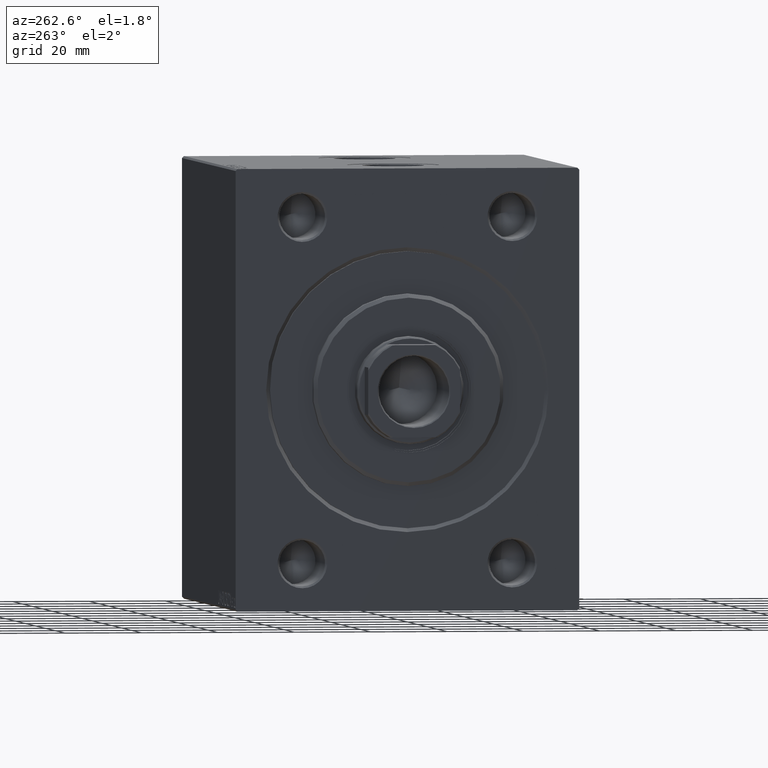
[diagram: clean part render]
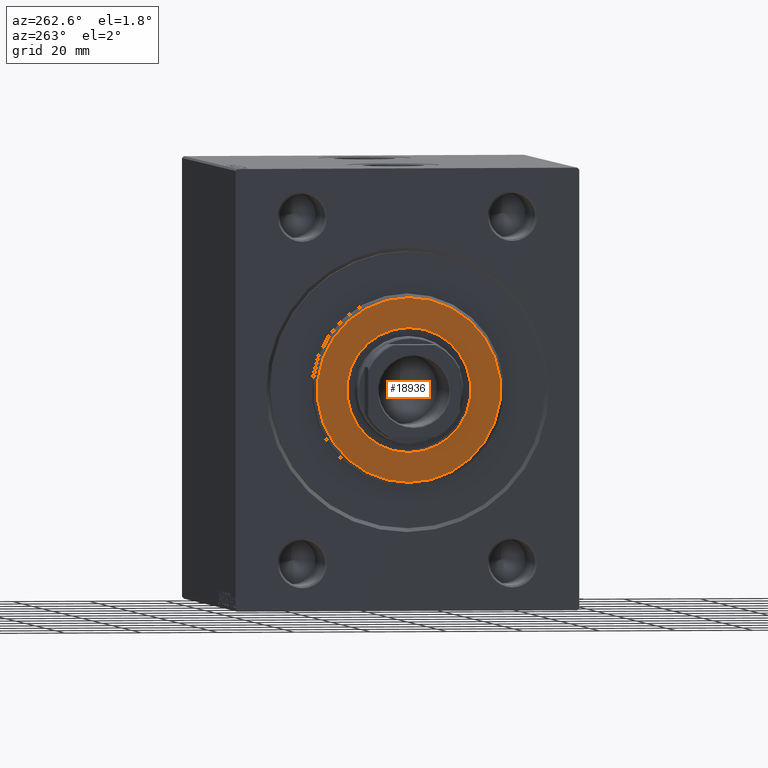
[diagram: same view with one face highlighted and labeled with its STEP entity id]
A machine part, auxiliary view. The second image highlights one B-rep face of the part: STEP entity #18936.
In plain terms, the highlighted planar face has unit normal (-1, 0, 0).
Its self-contained STEP definition (entity closure, byte-faithful):
#863 = EDGE_CURVE ( 'NONE', #29674, #34661, #41952, .T. ) ;
#2460 = AXIS2_PLACEMENT_3D ( 'NONE', #9601, #17258, #23089 ) ;
#3936 = CARTESIAN_POINT ( 'NONE',  ( 3.000000000000000000, 0.000000000000000000, 0.000000000000000000 ) ) ;
#4336 = DIRECTION ( 'NONE',  ( 0.000000000000000000, 0.000000000000000000, -1.000000000000000000 ) ) ;
#6357 = ORIENTED_EDGE ( 'NONE', *, *, #35378, .F. ) ;
#7293 = DIRECTION ( 'NONE',  ( 1.000000000000000000, -0.000000000000000000, 0.000000000000000000 ) ) ;
#7618 = DIRECTION ( 'NONE',  ( 0.000000000000000000, 0.000000000000000000, -1.000000000000000000 ) ) ;
#8767 = EDGE_CURVE ( 'NONE', #34661, #29674, #31979, .T. ) ;
#9027 = CARTESIAN_POINT ( 'NONE',  ( 3.000000000000000000, 1.990051048614449313E-15, 16.25000000000000000 ) ) ;
#9154 = AXIS2_PLACEMENT_3D ( 'NONE', #25882, #20500, #16908 ) ;
#9269 = AXIS2_PLACEMENT_3D ( 'NONE', #3936, #24393, #37897 ) ;
#9601 = CARTESIAN_POINT ( 'NONE',  ( 3.000000000000000000, 0.000000000000000000, 0.000000000000000000 ) ) ;
#10013 = EDGE_CURVE ( 'NONE', #20336, #11153, #19077, .T. ) ;
#11153 = VERTEX_POINT ( 'NONE', #26225 ) ;
#11207 = AXIS2_PLACEMENT_3D ( 'NONE', #17742, #31658, #7618 ) ;
#16908 = DIRECTION ( 'NONE',  ( 0.000000000000000000, 0.000000000000000000, -1.000000000000000000 ) ) ;
#16999 = PLANE ( 'NONE',  #9269 ) ;
#17258 = DIRECTION ( 'NONE',  ( 1.000000000000000000, -0.000000000000000000, 0.000000000000000000 ) ) ;
#17742 = CARTESIAN_POINT ( 'NONE',  ( 3.000000000000000000, 0.000000000000000000, 0.000000000000000000 ) ) ;
#18936 = ADVANCED_FACE ( 'NONE', ( #34305, #40811 ), #16999, .T. ) ;
#19077 = CIRCLE ( 'NONE', #11207, 16.25000000000000000 ) ;
#20336 = VERTEX_POINT ( 'NONE', #9027 ) ;
#20500 = DIRECTION ( 'NONE',  ( 1.000000000000000000, 0.000000000000000000, 0.000000000000000000 ) ) ;
#22750 = CIRCLE ( 'NONE', #9154, 16.25000000000000000 ) ;
#23089 = DIRECTION ( 'NONE',  ( 0.000000000000000000, 0.000000000000000000, -1.000000000000000000 ) ) ;
#24393 = DIRECTION ( 'NONE',  ( 1.000000000000000000, -0.000000000000000000, 0.000000000000000000 ) ) ;
#24418 = EDGE_LOOP ( 'NONE', ( #6357, #34190 ) ) ;
#25882 = CARTESIAN_POINT ( 'NONE',  ( 3.000000000000000000, 0.000000000000000000, 0.000000000000000000 ) ) ;
#26225 = CARTESIAN_POINT ( 'NONE',  ( 3.000000000000000000, 0.000000000000000000, -16.25000000000000000 ) ) ;
#26936 = AXIS2_PLACEMENT_3D ( 'NONE', #41674, #7293, #4336 ) ;
#29674 = VERTEX_POINT ( 'NONE', #43757 ) ;
#31658 = DIRECTION ( 'NONE',  ( 1.000000000000000000, 0.000000000000000000, 0.000000000000000000 ) ) ;
#31979 = CIRCLE ( 'NONE', #26936, 24.00000000000000711 ) ;
#32577 = ORIENTED_EDGE ( 'NONE', *, *, #863, .T. ) ;
#34190 = ORIENTED_EDGE ( 'NONE', *, *, #10013, .F. ) ;
#34305 = FACE_OUTER_BOUND ( 'NONE', #35355, .T. ) ;
#34661 = VERTEX_POINT ( 'NONE', #40574 ) ;
#35355 = EDGE_LOOP ( 'NONE', ( #36719, #32577 ) ) ;
#35378 = EDGE_CURVE ( 'NONE', #11153, #20336, #22750, .T. ) ;
#36719 = ORIENTED_EDGE ( 'NONE', *, *, #8767, .T. ) ;
#37897 = DIRECTION ( 'NONE',  ( 0.000000000000000000, 0.000000000000000000, -1.000000000000000000 ) ) ;
#40574 = CARTESIAN_POINT ( 'NONE',  ( 3.000000000000000000, 0.000000000000000000, 24.00000000000000711 ) ) ;
#40811 = FACE_BOUND ( 'NONE', #24418, .T. ) ;
#41674 = CARTESIAN_POINT ( 'NONE',  ( 3.000000000000000000, 0.000000000000000000, 0.000000000000000000 ) ) ;
#41952 = CIRCLE ( 'NONE', #2460, 24.00000000000000711 ) ;
#43757 = CARTESIAN_POINT ( 'NONE',  ( 3.000000000000000000, 3.000384657911015469E-15, -24.00000000000000711 ) ) ;